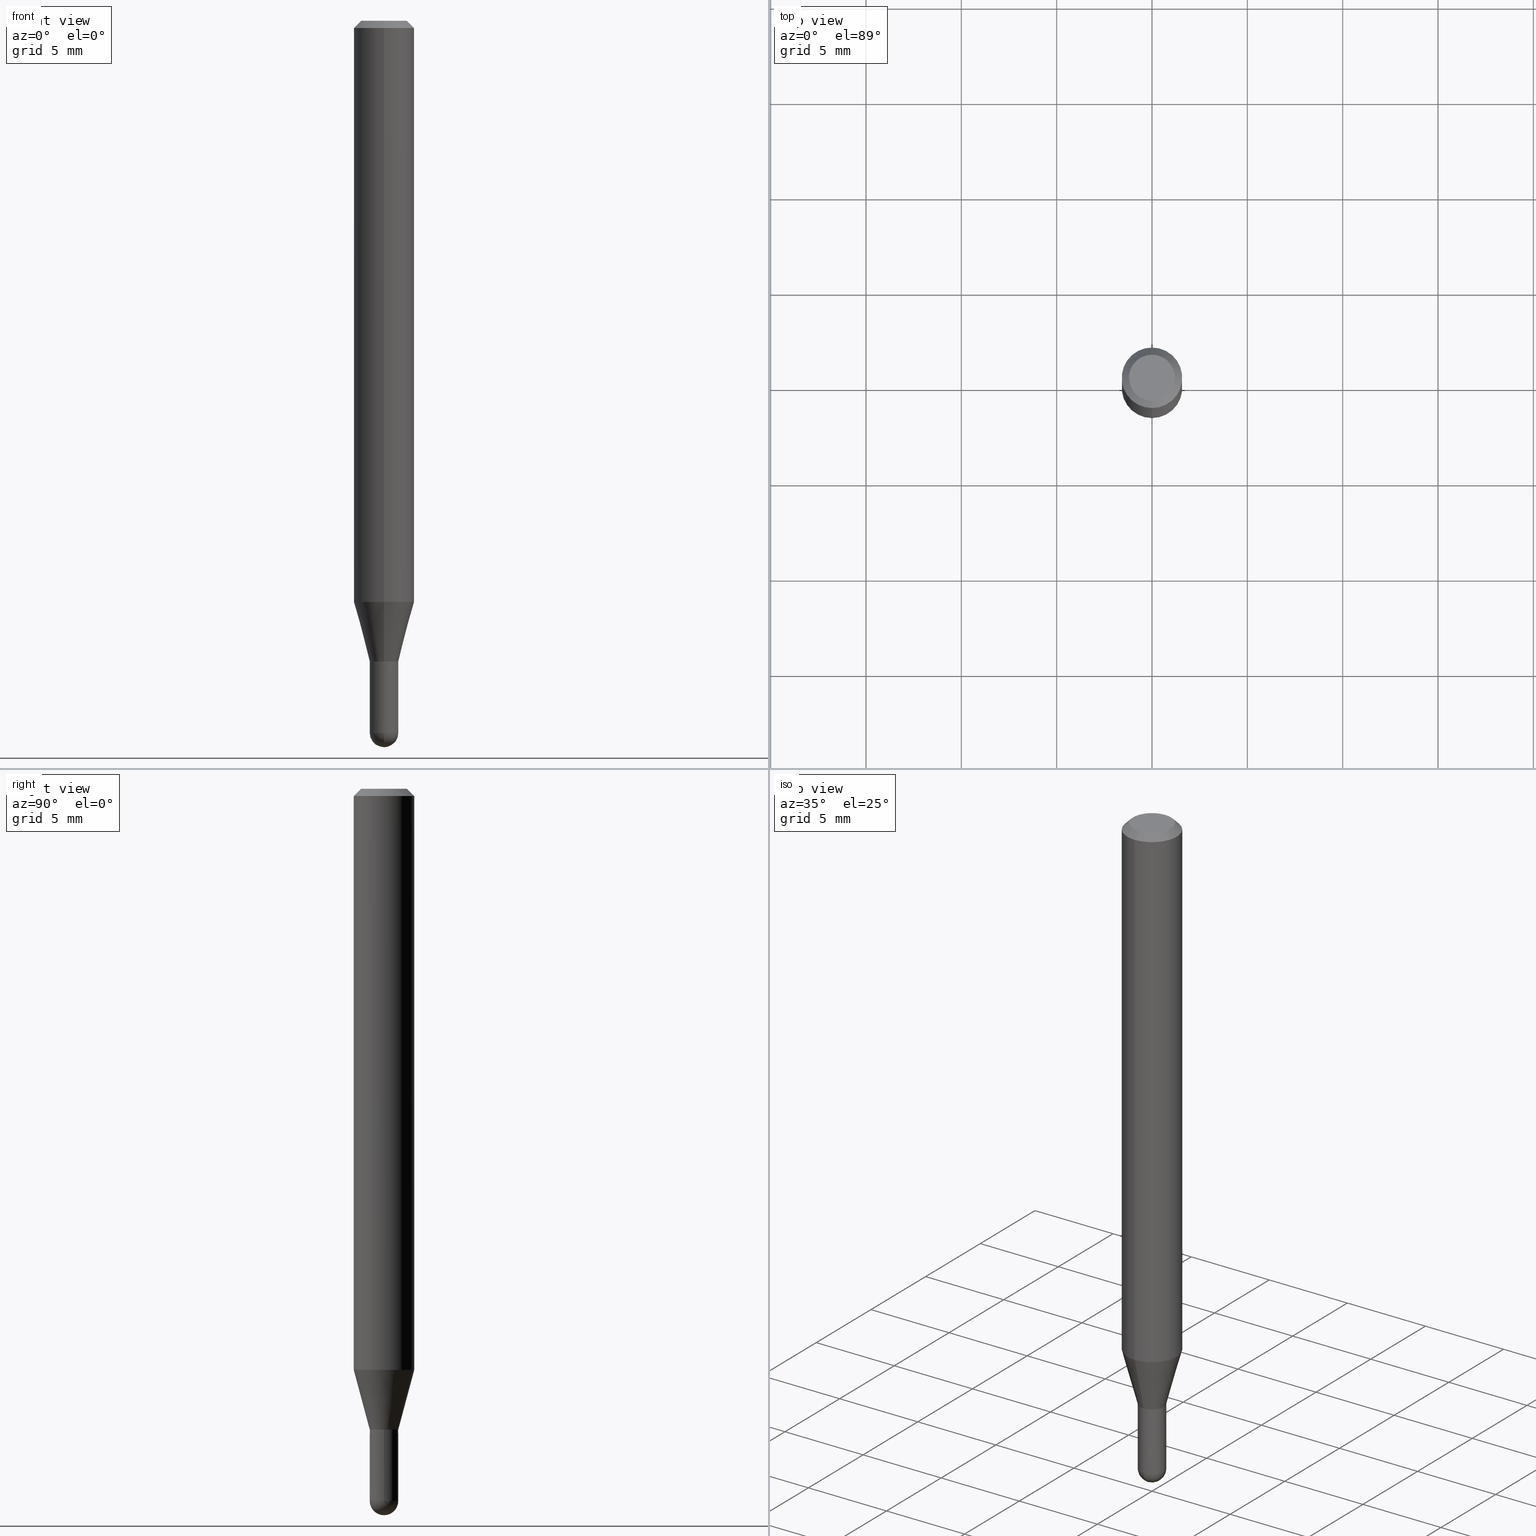
[diagram: canonical four-view strip — front | top / right | iso, engineering-drawing reading convention]
A machine part, canonical four-view strip (front | top / right | iso — engineering-drawing reading convention). The complete STEP part file that produces these views, byte-faithful:
ISO-10303-21;
HEADER;
FILE_DESCRIPTION (( 'STEP AP203' ),
    '1' );
FILE_NAME ('01482.STEP',
    '2024-03-07T21:31:13',
    ( '' ),
    ( '' ),
    'SwSTEP 2.0',
    'SolidWorks 2023',
    '' );
FILE_SCHEMA (( 'CONFIG_CONTROL_DESIGN' ));
ENDSEC;

DATA;
#1 = ORIENTED_EDGE ( 'NONE', *, *, #340, .F. ) ;
#2 = VECTOR ( 'NONE', #454, 39.37007874015748143 ) ;
#3 = AXIS2_PLACEMENT_3D ( 'NONE', #294, #452, #254 ) ;
#4 = VERTEX_POINT ( 'NONE', #277 ) ;
#5 = PERSON_AND_ORGANIZATION ( #240, #333 ) ;
#6 = CARTESIAN_POINT ( 'NONE',  ( -4.364351673553912750E-16, -0.06250000000000005551, -0.01499999999999979128 ) ) ;
#7 = EDGE_LOOP ( 'NONE', ( #408, #59, #193, #505 ) ) ;
#8 = EDGE_CURVE ( 'NONE', #418, #4, #76, .T. ) ;
#9 = CC_DESIGN_APPROVAL ( #30, ( #251 ) ) ;
#10 = EDGE_CURVE ( 'NONE', #413, #96, #382, .T. ) ;
#11 = APPROVAL_PERSON_ORGANIZATION ( #209, #216, #453 ) ;
#12 = ORIENTED_EDGE ( 'NONE', *, *, #352, .F. ) ;
#13 = ORIENTED_EDGE ( 'NONE', *, *, #473, .T. ) ;
#14 = CARTESIAN_POINT ( 'NONE',  ( 3.316907271900976096E-16, 0.04749999999999999362, -1.702749386738960268E-16 ) ) ;
#15 = DIRECTION ( 'NONE',  ( -2.445485998006059761E-29, 3.491456719177085880E-15, 1.000000000000000000 ) ) ;
#16 = AXIS2_PLACEMENT_3D ( 'NONE', #156, #41, #490 ) ;
#17 = CARTESIAN_POINT ( 'NONE',  ( 0.02950000000000000192, -5.082723959020908406E-15, -1.470500000000000140 ) ) ;
#18 = DIRECTION ( 'NONE',  ( -2.445485998006059761E-29, 3.491456719177085880E-15, 1.000000000000000000 ) ) ;
#19 = LINE ( 'NONE', #101, #107 ) ;
#20 =( CONVERSION_BASED_UNIT ( 'INCH', #374 ) LENGTH_UNIT ( ) NAMED_UNIT ( #339 ) );
#21 = DIRECTION ( 'NONE',  ( -6.982962677686265922E-15, -1.000000000000000000, 0.000000000000000000 ) ) ;
#22 = PERSON_AND_ORGANIZATION ( #240, #333 ) ;
#23 = ORIENTED_EDGE ( 'NONE', *, *, #447, .F. ) ;
#24 = CYLINDRICAL_SURFACE ( 'NONE', #185, 0.02950000000000000192 ) ;
#25 = LINE ( 'NONE', #91, #141 ) ;
#26 = DIRECTION ( 'NONE',  ( 1.000000000000000000, -6.982962677686250144E-15, 0.000000000000000000 ) ) ;
#27 = VERTEX_POINT ( 'NONE', #236 ) ;
#28 = DIRECTION ( 'NONE',  ( -2.445485998006059761E-29, 3.491456719177085880E-15, 1.000000000000000000 ) ) ;
#29 = AXIS2_PLACEMENT_3D ( 'NONE', #504, #431, #68 ) ;
#30 = APPROVAL ( #401, 'UNSPECIFIED' ) ;
#31 = DIRECTION ( 'NONE',  ( -2.445485998006059761E-29, 3.491456719177085486E-15, 1.000000000000000000 ) ) ;
#32 = EDGE_LOOP ( 'NONE', ( #194, #495, #363, #23 ) ) ;
#33 = ADVANCED_FACE ( 'NONE', ( #186 ), #62, .T. ) ;
#34 = CIRCLE ( 'NONE', #232, 0.02950000000000000192 ) ;
#35 = CONICAL_SURFACE ( 'NONE', #87, 0.06250000000000000000, 0.7853981633974483900 ) ;
#36 = FACE_OUTER_BOUND ( 'NONE', #81, .T. ) ;
#37 = CARTESIAN_POINT ( 'NONE',  ( -2.059973989917138785E-16, -0.02950000000000481751, -1.323000000000000176 ) ) ;
#38 = CC_DESIGN_PERSON_AND_ORGANIZATION_ASSIGNMENT ( #407, #492, ( #234 ) ) ;
#39 = ORIENTED_EDGE ( 'NONE', *, *, #89, .F. ) ;
#40 = CARTESIAN_POINT ( 'NONE',  ( 3.593539138942164173E-29, -5.137836016826330348E-15, -1.470500000000000140 ) ) ;
#41 = DIRECTION ( 'NONE',  ( 1.000000000000000000, -7.105427357601001070E-15, 4.926315508542082329E-29 ) ) ;
#42 = DIRECTION ( 'NONE',  ( -1.807323732225379049E-15, -0.2588190451025252359, 0.9659258262890670910 ) ) ;
#43 = VECTOR ( 'NONE', #465, 39.37007874015748143 ) ;
#44 = PRODUCT ( '01482', '01482', '', ( #151 ) ) ;
#45 = APPROVAL_ROLE ( '' ) ;
#46 = DIRECTION ( 'NONE',  ( -2.445485998006059761E-29, 3.491456719177085880E-15, 1.000000000000000000 ) ) ;
#47 = CALENDAR_DATE ( 2024, 7, 3 ) ;
#48 = VERTEX_POINT ( 'NONE', #37 ) ;
#49 = CONICAL_SURFACE ( 'NONE', #404, 0.06250000000000000000, 0.7853981633974483900 ) ;
#50 = CARTESIAN_POINT ( 'NONE',  ( 3.235355230582935570E-29, -4.619229811289481459E-15, -1.323000000000000176 ) ) ;
#51 = ORIENTED_EDGE ( 'NONE', *, *, #340, .T. ) ;
#52 = DIRECTION ( 'NONE',  ( -2.445485998006059761E-29, 3.491456719177085880E-15, 1.000000000000000000 ) ) ;
#53 = VERTEX_POINT ( 'NONE', #6 ) ;
#54 = CARTESIAN_POINT ( 'NONE',  ( 4.440892098500917054E-16, 0.06249999999999578115, -1.199842323350231998 ) ) ;
#55 = APPROVAL ( #211, 'UNSPECIFIED' ) ;
#56 = AXIS2_PLACEMENT_3D ( 'NONE', #165, #197, #367 ) ;
#57 = CYLINDRICAL_SURFACE ( 'NONE', #191, 0.02950000000000006437 ) ;
#58 = APPLICATION_PROTOCOL_DEFINITION ( 'international standard', 'config_control_design', 1994, #500 ) ;
#59 = ORIENTED_EDGE ( 'NONE', *, *, #10, .T. ) ;
#60 = EDGE_CURVE ( 'NONE', #474, #318, #155, .T. ) ;
#61 = CYLINDRICAL_SURFACE ( 'NONE', #371, 0.06250000000000000000 ) ;
#62 = CONICAL_SURFACE ( 'NONE', #422, 0.02899999999999999800, 0.7853981633974739252 ) ;
#63 = CIRCLE ( 'NONE', #278, 0.04749999999999999362 ) ;
#64 = VECTOR ( 'NONE', #217, 39.37007874015748143 ) ;
#65 = CARTESIAN_POINT ( 'NONE',  ( 4.440892098500920998E-16, 0.06249999999999995143, -0.01500000000000022669 ) ) ;
#66 = CARTESIAN_POINT ( 'NONE',  ( 3.235377975362016805E-29, -4.619197239471284421E-15, -1.323000000000000176 ) ) ;
#67 = VERTEX_POINT ( 'NONE', #144 ) ;
#68 = DIRECTION ( 'NONE',  ( 1.000000000000000000, -6.982962677686265922E-15, 4.876176775795935793E-29 ) ) ;
#69 = PRODUCT_DEFINITION ( 'UNKNOWN', '', #234, #300 ) ;
#70 = CARTESIAN_POINT ( 'NONE',  ( 2.167064733449136594E-46, -3.093950540163322949E-32, -8.861489025968927534E-18 ) ) ;
#71 = DIRECTION ( 'NONE',  ( -6.982962677686265922E-15, -1.000000000000000000, 0.000000000000000000 ) ) ;
#72 = CIRCLE ( 'NONE', #353, 0.02950000000000000192 ) ;
#73 = DIRECTION ( 'NONE',  ( -6.982962677686265922E-15, -1.000000000000000000, 3.483106191921935554E-15 ) ) ;
#74 = CIRCLE ( 'NONE', #16, 0.02950000000000016498 ) ;
#75 = CARTESIAN_POINT ( 'NONE',  ( -2.059973989917138785E-16, -0.02950000000000481751, -1.323000000000000176 ) ) ;
#76 = CIRCLE ( 'NONE', #476, 0.02950000000000000192 ) ;
#77 = CIRCLE ( 'NONE', #459, 0.02949999999999999845 ) ;
#78 = DIRECTION ( 'NONE',  ( -6.982962677686265133E-15, -1.000000000000000000, 3.491456719177085880E-15 ) ) ;
#79 = DATE_AND_TIME ( #127, #126 ) ;
#80 = CARTESIAN_POINT ( 'NONE',  ( 0.000000000000000000, 0.000000000000000000, 0.000000000000000000 ) ) ;
#81 = EDGE_LOOP ( 'NONE', ( #159, #214 ) ) ;
#82 = ADVANCED_FACE ( 'NONE', ( #309 ), #162, .T. ) ;
#83 = COORDINATED_UNIVERSAL_TIME_OFFSET ( 5, 0, .BEHIND. ) ;
#84 = DIRECTION ( 'NONE',  ( -2.445485998006059761E-29, 3.491456719177085880E-15, 1.000000000000000000 ) ) ;
#85 = DATE_AND_TIME ( #184, #405 ) ;
#86 = ORIENTED_EDGE ( 'NONE', *, *, #364, .T. ) ;
#87 = AXIS2_PLACEMENT_3D ( 'NONE', #88, #325, #478 ) ;
#88 = CARTESIAN_POINT ( 'NONE',  ( 3.668228997009091848E-31, -5.237185078765632149E-17, -0.01500000000000000812 ) ) ;
#89 = EDGE_CURVE ( 'NONE', #467, #136, #223, .T. ) ;
#90 = DATE_AND_TIME ( #290, #440 ) ;
#91 = CARTESIAN_POINT ( 'NONE',  ( 4.440892098500625669E-16, 0.06250000000000000000, -2.182160449485678675E-16 ) ) ;
#92 = DIRECTION ( 'NONE',  ( 1.000000000000000000, -6.982962677686250933E-15, 0.000000000000000000 ) ) ;
#93 = ORIENTED_EDGE ( 'NONE', *, *, #485, .T. ) ;
#94 = DIRECTION ( 'NONE',  ( 1.000000000000000000, -6.982962677686265922E-15, 4.876176775795935793E-29 ) ) ;
#95 = FACE_OUTER_BOUND ( 'NONE', #445, .T. ) ;
#96 = VERTEX_POINT ( 'NONE', #125 ) ;
#97 = AXIS2_PLACEMENT_3D ( 'NONE', #221, #28, #103 ) ;
#98 = CARTESIAN_POINT ( 'NONE',  ( 2.059973989917772093E-16, 0.02949999999999538061, -1.323000000000000176 ) ) ;
#99 = DIRECTION ( 'NONE',  ( -6.982962677686265922E-15, -1.000000000000000000, 0.000000000000000000 ) ) ;
#100 = ORIENTED_EDGE ( 'NONE', *, *, #373, .F. ) ;
#101 = CARTESIAN_POINT ( 'NONE',  ( -4.287811248607203282E-16, -0.06250000000000005551, -0.01499999999999979128 ) ) ;
#102 = CARTESIAN_POINT ( 'NONE',  ( 2.078337502098613392E-16, 0.02899999999999538017, -1.323000000000000176 ) ) ;
#103 = DIRECTION ( 'NONE',  ( -6.982962677686265922E-15, -1.000000000000000000, 3.483106191921935554E-15 ) ) ;
#104 = DIRECTION ( 'NONE',  ( -6.982962677686266711E-15, -1.000000000000000000, 3.491456719177085880E-15 ) ) ;
#105 = AXIS2_PLACEMENT_3D ( 'NONE', #40, #256, #231 ) ;
#106 = DIRECTION ( 'NONE',  ( -2.445468806185136597E-29, 3.491481338843145583E-15, 1.000000000000000000 ) ) ;
#107 = VECTOR ( 'NONE', #468, 39.37007874015748143 ) ;
#108 = ADVANCED_FACE ( 'NONE', ( #203 ), #442, .F. ) ;
#109 = ORIENTED_EDGE ( 'NONE', *, *, #10, .F. ) ;
#110 = CARTESIAN_POINT ( 'NONE',  ( 2.934197601568051168E-29, -4.189197541814212806E-15, -1.199842323350231776 ) ) ;
#111 = ORIENTED_EDGE ( 'NONE', *, *, #364, .F. ) ;
#112 = ORIENTED_EDGE ( 'NONE', *, *, #190, .T. ) ;
#113 = CARTESIAN_POINT ( 'NONE',  ( 2.096101070492299629E-16, 0.02950000000000006437, -1.029979732157242598E-16 ) ) ;
#114 = EDGE_LOOP ( 'NONE', ( #389, #181, #86, #390 ) ) ;
#115 = ORIENTED_EDGE ( 'NONE', *, *, #403, .T. ) ;
#116 = ADVANCED_FACE ( 'NONE', ( #129 ), #398, .T. ) ;
#117 = EDGE_LOOP ( 'NONE', ( #112, #271 ) ) ;
#118 = EDGE_LOOP ( 'NONE', ( #471, #282, #122, #51, #315 ) ) ;
#119 = AXIS2_PLACEMENT_3D ( 'NONE', #154, #31, #511 ) ;
#120 = APPLICATION_CONTEXT ( 'configuration controlled 3d designs of mechanical parts and assemblies' ) ;
#121 = EDGE_CURVE ( 'NONE', #4, #402, #397, .T. ) ;
#122 = ORIENTED_EDGE ( 'NONE', *, *, #149, .T. ) ;
#123 = CC_DESIGN_PERSON_AND_ORGANIZATION_ASSIGNMENT ( #479, #253, ( #234 ) ) ;
#124 = AXIS2_PLACEMENT_3D ( 'NONE', #14, #326, #443 ) ;
#125 = CARTESIAN_POINT ( 'NONE',  ( -2.059973989917094905E-16, -0.02950000000000521996, -1.470500000000000140 ) ) ;
#126 = LOCAL_TIME ( 16, 31, 13.00000000000000000, #331 ) ;
#127 = CALENDAR_DATE ( 2024, 7, 3 ) ;
#128 = PERSON_AND_ORGANIZATION ( #240, #333 ) ;
#129 = FACE_OUTER_BOUND ( 'NONE', #342, .T. ) ;
#130 = ORIENTED_EDGE ( 'NONE', *, *, #475, .F. ) ;
#131 = DIRECTION ( 'NONE',  ( -6.982962677686265922E-15, -1.000000000000000000, 4.370956789862821150E-15 ) ) ;
#132 = APPROVAL_ROLE ( '' ) ;
#133 = CARTESIAN_POINT ( 'NONE',  ( 3.840629472727447874E-16, 0.04749999999999999362, -1.747056831868805136E-16 ) ) ;
#134 = CARTESIAN_POINT ( 'NONE',  ( 3.596061879495243621E-29, -5.134223308768845522E-15, -1.470500000000000140 ) ) ;
#135 = ORIENTED_EDGE ( 'NONE', *, *, #506, .F. ) ;
#136 = VERTEX_POINT ( 'NONE', #54 ) ;
#137 = DIRECTION ( 'NONE',  ( -2.445485998006059761E-29, 3.491456719177085880E-15, 1.000000000000000000 ) ) ;
#138 = FACE_OUTER_BOUND ( 'NONE', #381, .T. ) ;
#139 = ORIENTED_EDGE ( 'NONE', *, *, #461, .T. ) ;
#140 = DIRECTION ( 'NONE',  ( 0.000000000000000000, 0.000000000000000000, 1.000000000000000000 ) ) ;
#141 = VECTOR ( 'NONE', #493, 39.37007874015748143 ) ;
#142 = CARTESIAN_POINT ( 'NONE',  ( 3.235377975362016805E-29, -4.619197239471284421E-15, -1.323000000000000176 ) ) ;
#143 = DIRECTION ( 'NONE',  ( -2.445485998006059761E-29, 3.491456719177085880E-15, 1.000000000000000000 ) ) ;
#144 = CARTESIAN_POINT ( 'NONE',  ( -3.773273898774340269E-16, -0.04749999999999999362, 1.569827051349426154E-16 ) ) ;
#145 = ADVANCED_FACE ( 'NONE', ( #502 ), #497, .T. ) ;
#146 = DIRECTION ( 'NONE',  ( -2.445468806185136597E-29, 3.491481338843145583E-15, 1.000000000000000000 ) ) ;
#147 = DIRECTION ( 'NONE',  ( 2.445485998006059761E-29, -3.491456719177085880E-15, -1.000000000000000000 ) ) ;
#148 = DIRECTION ( 'NONE',  ( -2.445468806185136597E-29, 3.491481338843145583E-15, 1.000000000000000000 ) ) ;
#149 = EDGE_CURVE ( 'NONE', #96, #512, #34, .T. ) ;
#150 = AXIS2_PLACEMENT_3D ( 'NONE', #365, #52, #99 ) ;
#151 = MECHANICAL_CONTEXT ( 'NONE', #120, 'mechanical' ) ;
#152 = ORIENTED_EDGE ( 'NONE', *, *, #149, .F. ) ;
#153 = EDGE_CURVE ( 'NONE', #467, #48, #302, .T. ) ;
#154 = CARTESIAN_POINT ( 'NONE',  ( 3.235377975362016805E-29, -4.619197239471284421E-15, -1.323000000000000176 ) ) ;
#155 = LINE ( 'NONE', #433, #160 ) ;
#156 = CARTESIAN_POINT ( 'NONE',  ( 3.593539138942164173E-29, -5.137836016826330348E-15, -1.470500000000000140 ) ) ;
#157 = CC_DESIGN_DATE_AND_TIME_ASSIGNMENT ( #85, #346, ( #69 ) ) ;
#158 = ORIENTED_EDGE ( 'NONE', *, *, #403, .F. ) ;
#159 = ORIENTED_EDGE ( 'NONE', *, *, #262, .F. ) ;
#160 = VECTOR ( 'NONE', #322, 39.37007874015748143 ) ;
#161 = EDGE_CURVE ( 'NONE', #4, #96, #72, .T. ) ;
#162 = SPHERICAL_SURFACE ( 'NONE', #105, 0.02950000000000016498 ) ;
#163 = ADVANCED_FACE ( 'NONE', ( #138 ), #285, .T. ) ;
#164 = AXIS2_PLACEMENT_3D ( 'NONE', #205, #316, #425 ) ;
#165 = CARTESIAN_POINT ( 'NONE',  ( 3.234155232363014504E-29, -4.617451511111696555E-15, -1.322500000000000231 ) ) ;
#166 = EDGE_LOOP ( 'NONE', ( #455, #366, #100, #111 ) ) ;
#167 = SECURITY_CLASSIFICATION_LEVEL ( 'unclassified' ) ;
#168 = DIRECTION ( 'NONE',  ( -2.445485998006059761E-29, 3.491456719177085880E-15, 1.000000000000000000 ) ) ;
#169 = EDGE_CURVE ( 'NONE', #317, #430, #298, .T. ) ;
#170 = ORIENTED_EDGE ( 'NONE', *, *, #153, .F. ) ;
#171 = SHAPE_DEFINITION_REPRESENTATION ( #245, #483 ) ;
#172 = DIRECTION ( 'NONE',  ( -6.982962677686265922E-15, -1.000000000000000000, 0.000000000000000000 ) ) ;
#173 = AXIS2_PLACEMENT_3D ( 'NONE', #142, #15, #368 ) ;
#174 = ORIENTED_EDGE ( 'NONE', *, *, #190, .F. ) ;
#175 = CIRCLE ( 'NONE', #347, 0.02899999999999999800 ) ;
#176 = CYLINDRICAL_SURFACE ( 'NONE', #432, 0.06250000000000000000 ) ;
#177 = CARTESIAN_POINT ( 'NONE',  ( 0.000000000000000000, 0.000000000000000000, 0.000000000000000000 ) ) ;
#178 = LINE ( 'NONE', #207, #64 ) ;
#179 = DIRECTION ( 'NONE',  ( -6.982962677686265133E-15, -1.000000000000000000, 0.000000000000000000 ) ) ;
#180 = COORDINATED_UNIVERSAL_TIME_OFFSET ( 5, 0, .BEHIND. ) ;
#181 = ORIENTED_EDGE ( 'NONE', *, *, #287, .T. ) ;
#182 = DIRECTION ( 'NONE',  ( -6.982962677686265922E-15, -1.000000000000000000, 0.000000000000000000 ) ) ;
#183 = DIRECTION ( 'NONE',  ( -2.445468806185136877E-29, 3.491481338843145188E-15, 1.000000000000000000 ) ) ;
#184 = CALENDAR_DATE ( 2024, 7, 3 ) ;
#185 = AXIS2_PLACEMENT_3D ( 'NONE', #508, #146, #94 ) ;
#186 = FACE_OUTER_BOUND ( 'NONE', #276, .T. ) ;
#187 = ORIENTED_EDGE ( 'NONE', *, *, #304, .F. ) ;
#188 = PLANE ( 'NONE',  #293 ) ;
#189 = ORIENTED_EDGE ( 'NONE', *, *, #242, .T. ) ;
#190 = EDGE_CURVE ( 'NONE', #395, #402, #451, .T. ) ;
#191 = AXIS2_PLACEMENT_3D ( 'NONE', #215, #341, #460 ) ;
#192 = PLANE ( 'NONE',  #119 ) ;
#193 = ORIENTED_EDGE ( 'NONE', *, *, #161, .F. ) ;
#194 = ORIENTED_EDGE ( 'NONE', *, *, #244, .T. ) ;
#195 = CLOSED_SHELL ( 'NONE', ( #400, #82, #437, #145, #441 ) ) ;
#196 = ORIENTED_EDGE ( 'NONE', *, *, #321, .T. ) ;
#197 = DIRECTION ( 'NONE',  ( -2.445485998006059761E-29, 3.491456719177085880E-15, 1.000000000000000000 ) ) ;
#198 = CARTESIAN_POINT ( 'NONE',  ( -0.02950000000000000192, 2.096101070492295684E-16, -1.451085851625197342E-30 ) ) ;
#199 = ADVANCED_FACE ( 'NONE', ( #406 ), #176, .T. ) ;
#200 = DATE_AND_TIME ( #47, #305 ) ;
#201 = AXIS2_PLACEMENT_3D ( 'NONE', #313, #427, #71 ) ;
#202 = CIRCLE ( 'NONE', #150, 0.02950000000000019967 ) ;
#203 = FACE_OUTER_BOUND ( 'NONE', #289, .T. ) ;
#204 = PERSON_AND_ORGANIZATION_ROLE ( 'classification_officer' ) ;
#205 = CARTESIAN_POINT ( 'NONE',  ( 3.596061879495243621E-29, -5.134223308768845522E-15, -1.470500000000000140 ) ) ;
#206 = CARTESIAN_POINT ( 'NONE',  ( -2.059973989917126460E-16, -0.02950000000000463710, -1.322500000000000231 ) ) ;
#207 = CARTESIAN_POINT ( 'NONE',  ( -2.059973989917452604E-16, -0.02950000000000006437, 1.029979732157242598E-16 ) ) ;
#208 = DIRECTION ( 'NONE',  ( -2.445468806185136597E-29, 3.491481338843145583E-15, 1.000000000000000000 ) ) ;
#209 = PERSON_AND_ORGANIZATION ( #240, #333 ) ;
#210 = DIRECTION ( 'NONE',  ( -2.445468806185136597E-29, 3.491481338843145583E-15, 1.000000000000000000 ) ) ;
#211 = APPROVAL_STATUS ( 'not_yet_approved' ) ;
#212 = CIRCLE ( 'NONE', #399, 0.06250000000000000000 ) ;
#213 = ADVANCED_FACE ( 'NONE', ( #494 ), #61, .T. ) ;
#214 = ORIENTED_EDGE ( 'NONE', *, *, #242, .F. ) ;
#215 = CARTESIAN_POINT ( 'NONE',  ( 0.000000000000000000, 0.000000000000000000, 0.000000000000000000 ) ) ;
#216 = APPROVAL ( #295, 'UNSPECIFIED' ) ;
#217 = DIRECTION ( 'NONE',  ( -2.445485998006060041E-29, 3.491456719177085486E-15, 1.000000000000000000 ) ) ;
#218 = CARTESIAN_POINT ( 'NONE',  ( 3.596061879495243621E-29, -5.134223308768845522E-15, -1.470500000000000140 ) ) ;
#219 = AXIS2_PLACEMENT_3D ( 'NONE', #50, #301, #92 ) ;
#220 = CIRCLE ( 'NONE', #264, 0.06250000000000000000 ) ;
#221 = CARTESIAN_POINT ( 'NONE',  ( 3.668228997009091848E-31, -5.237185078765632149E-17, -0.01500000000000000812 ) ) ;
#222 = DIRECTION ( 'NONE',  ( -2.445485998006059761E-29, 3.491456719177085880E-15, 1.000000000000000000 ) ) ;
#223 = LINE ( 'NONE', #449, #391 ) ;
#224 = DIRECTION ( 'NONE',  ( 1.000000000000000000, -6.982962677686250933E-15, 0.000000000000000000 ) ) ;
#225 = CC_DESIGN_DATE_AND_TIME_ASSIGNMENT ( #200, #484, ( #251 ) ) ;
#226 = DIRECTION ( 'NONE',  ( -2.445485998006059761E-29, 3.491456719177085880E-15, 1.000000000000000000 ) ) ;
#227 = ORIENTED_EDGE ( 'NONE', *, *, #352, .T. ) ;
#228 = CARTESIAN_POINT ( 'NONE',  ( 3.668228997009091848E-31, -5.237185078765632149E-17, -0.01500000000000000812 ) ) ;
#229 = FACE_OUTER_BOUND ( 'NONE', #463, .T. ) ;
#230 = DIRECTION ( 'NONE',  ( -6.982962677686265133E-15, -1.000000000000000000, 0.000000000000000000 ) ) ;
#231 = DIRECTION ( 'NONE',  ( -6.982962677686265922E-15, -1.000000000000000000, 0.000000000000000000 ) ) ;
#232 = AXIS2_PLACEMENT_3D ( 'NONE', #134, #208, #26 ) ;
#233 = CIRCLE ( 'NONE', #241, 0.06250000000000000000 ) ;
#234 = PRODUCT_DEFINITION_FORMATION_WITH_SPECIFIED_SOURCE ( 'ANY', '', #44, .NOT_KNOWN. ) ;
#235 = VERTEX_POINT ( 'NONE', #206 ) ;
#236 = CARTESIAN_POINT ( 'NONE',  ( -2.025059176528693183E-16, -0.02900000000000461584, -1.323000000000000176 ) ) ;
#237 = LINE ( 'NONE', #75, #392 ) ;
#238 = CARTESIAN_POINT ( 'NONE',  ( 3.235377975362016805E-29, -4.619197239471284421E-15, -1.323000000000000176 ) ) ;
#239 = ADVANCED_FACE ( 'NONE', ( #249 ), #482, .T. ) ;
#240 = PERSON ( 'UNSPECIFIED', 'UNSPECIFIED', 'UNSPECIFIED', ('UNSPECIFIED'), ('UNSPECIFIED'), ('UNSPECIFIED') ) ;
#241 = AXIS2_PLACEMENT_3D ( 'NONE', #228, #396, #73 ) ;
#242 = EDGE_CURVE ( 'NONE', #317, #27, #175, .T. ) ;
#243 = DIRECTION ( 'NONE',  ( -6.982962677686265922E-15, -1.000000000000000000, 0.000000000000000000 ) ) ;
#244 = EDGE_CURVE ( 'NONE', #48, #467, #202, .T. ) ;
#245 = PRODUCT_DEFINITION_SHAPE ( 'NONE', 'NONE',  #69 ) ;
#246 = ADVANCED_FACE ( 'NONE', ( #95 ), #57, .F. ) ;
#247 = PERSON_AND_ORGANIZATION ( #240, #333 ) ;
#248 = AXIS2_PLACEMENT_3D ( 'NONE', #80, #486, #78 ) ;
#249 = FACE_OUTER_BOUND ( 'NONE', #32, .T. ) ;
#250 = APPROVAL_DATE_TIME ( #90, #216 ) ;
#251 = SECURITY_CLASSIFICATION ( '', '', #167 ) ;
#252 = VERTEX_POINT ( 'NONE', #267 ) ;
#253 = PERSON_AND_ORGANIZATION_ROLE ( 'design_supplier' ) ;
#254 = DIRECTION ( 'NONE',  ( -6.982962677686265133E-15, -1.000000000000000000, 0.000000000000000000 ) ) ;
#255 = DATE_AND_TIME ( #335, #477 ) ;
#256 = DIRECTION ( 'NONE',  ( 1.000000000000000000, -6.982962677686265922E-15, 4.883557194083112340E-29 ) ) ;
#257 = EDGE_CURVE ( 'NONE', #252, #136, #220, .T. ) ;
#258 = ORIENTED_EDGE ( 'NONE', *, *, #297, .T. ) ;
#259 = DIRECTION ( 'NONE',  ( -2.445485998006060041E-29, 3.491456719177085486E-15, 1.000000000000000000 ) ) ;
#260 = DIRECTION ( 'NONE',  ( -6.982962677686266711E-15, -1.000000000000000000, 3.491456719177085880E-15 ) ) ;
#261 = CARTESIAN_POINT ( 'NONE',  ( 0.000000000000000000, 0.000000000000000000, 0.000000000000000000 ) ) ;
#262 = EDGE_CURVE ( 'NONE', #27, #317, #416, .T. ) ;
#263 = ORIENTED_EDGE ( 'NONE', *, *, #287, .F. ) ;
#264 = AXIS2_PLACEMENT_3D ( 'NONE', #419, #168, #131 ) ;
#265 = APPROVAL_PERSON_ORGANIZATION ( #128, #30, #45 ) ;
#266 = DIRECTION ( 'NONE',  ( -1.000000000000000000, 6.982962677686265922E-15, -4.876176775795935793E-29 ) ) ;
#267 = CARTESIAN_POINT ( 'NONE',  ( -4.364351673553624323E-16, -0.06250000000000421885, -1.199842323350231554 ) ) ;
#268 = PERSON_AND_ORGANIZATION_ROLE ( 'creator' ) ;
#269 = CARTESIAN_POINT ( 'NONE',  ( 3.664419098448086283E-29, -5.242641070350946204E-15, -1.500000000000000222 ) ) ;
#270 = CARTESIAN_POINT ( 'NONE',  ( 3.668228997009091848E-31, -5.237185078765632149E-17, -0.01500000000000000812 ) ) ;
#271 = ORIENTED_EDGE ( 'NONE', *, *, #429, .T. ) ;
#272 = CARTESIAN_POINT ( 'NONE',  ( 0.02950000000000000192, -2.059973989917448660E-16, 1.438472148859801150E-30 ) ) ;
#273 = ORIENTED_EDGE ( 'NONE', *, *, #169, .T. ) ;
#274 = ORIENTED_EDGE ( 'NONE', *, *, #153, .T. ) ;
#275 = DIRECTION ( 'NONE',  ( -4.937700262164674260E-15, -0.7071067811865632269, 0.7071067811865319186 ) ) ;
#276 = EDGE_LOOP ( 'NONE', ( #434, #189, #385, #12 ) ) ;
#277 = CARTESIAN_POINT ( 'NONE',  ( -0.02950000000000000192, -4.667116452979933749E-15, -1.470500000000000140 ) ) ;
#278 = AXIS2_PLACEMENT_3D ( 'NONE', #70, #222, #104 ) ;
#279 = ORIENTED_EDGE ( 'NONE', *, *, #121, .T. ) ;
#280 = EDGE_CURVE ( 'NONE', #512, #418, #499, .T. ) ;
#281 = DIRECTION ( 'NONE',  ( -2.445468806185136877E-29, 3.491481338843145188E-15, 1.000000000000000000 ) ) ;
#282 = ORIENTED_EDGE ( 'NONE', *, *, #161, .T. ) ;
#283 = CC_DESIGN_PERSON_AND_ORGANIZATION_ASSIGNMENT ( #5, #320, ( #44 ) ) ;
#284 = FACE_OUTER_BOUND ( 'NONE', #488, .T. ) ;
#285 = CONICAL_SURFACE ( 'NONE', #360, 0.02899999999999999800, 0.7853981633974739252 ) ;
#286 = VECTOR ( 'NONE', #275, 39.37007874015748143 ) ;
#287 = EDGE_CURVE ( 'NONE', #136, #252, #212, .T. ) ;
#288 = FACE_OUTER_BOUND ( 'NONE', #118, .T. ) ;
#289 = EDGE_LOOP ( 'NONE', ( #170, #258, #227, #130 ) ) ;
#290 = CALENDAR_DATE ( 2024, 7, 3 ) ;
#291 = EDGE_LOOP ( 'NONE', ( #109, #13, #369, #152 ) ) ;
#292 = MANIFOLD_SOLID_BREP ( 'Body-Move/Copy2[2]', #323 ) ;
#293 = AXIS2_PLACEMENT_3D ( 'NONE', #98, #414, #266 ) ;
#294 = CARTESIAN_POINT ( 'NONE',  ( 3.235377975362016805E-29, -4.619197239471284421E-15, -1.323000000000000176 ) ) ;
#295 = APPROVAL_STATUS ( 'not_yet_approved' ) ;
#296 = ORIENTED_EDGE ( 'NONE', *, *, #321, .F. ) ;
#297 = EDGE_CURVE ( 'NONE', #467, #430, #350, .T. ) ;
#298 = LINE ( 'NONE', #372, #2 ) ;
#299 = DIRECTION ( 'NONE',  ( -2.445485998006059761E-29, 3.491456719177085880E-15, 1.000000000000000000 ) ) ;
#300 = DESIGN_CONTEXT ( 'detailed design', #500, 'design' ) ;
#301 = DIRECTION ( 'NONE',  ( -2.445468806185136597E-29, 3.491481338843145583E-15, 1.000000000000000000 ) ) ;
#302 = CIRCLE ( 'NONE', #173, 0.02950000000000019967 ) ;
#303 = APPROVAL_DATE_TIME ( #255, #55 ) ;
#304 = EDGE_CURVE ( 'NONE', #27, #235, #308, .T. ) ;
#305 = LOCAL_TIME ( 16, 31, 13.00000000000000000, #83 ) ;
#306 = DIRECTION ( 'NONE',  ( -2.445485998006059761E-29, 3.491456719177085880E-15, 1.000000000000000000 ) ) ;
#307 = CARTESIAN_POINT ( 'NONE',  ( 3.235377975362016805E-29, -4.619197239471284421E-15, -1.323000000000000176 ) ) ;
#308 = LINE ( 'NONE', #466, #286 ) ;
#309 = FACE_OUTER_BOUND ( 'NONE', #291, .T. ) ;
#310 = CARTESIAN_POINT ( 'NONE',  ( -0.02949999999999999845, -4.667116452979933749E-15, -1.323000000000000176 ) ) ;
#311 = MANIFOLD_SOLID_BREP ( 'Body-Move/Copy2[1]', #195 ) ;
#312 = DIRECTION ( 'NONE',  ( -6.982962677686265922E-15, -1.000000000000000000, 4.370956789862821150E-15 ) ) ;
#313 = CARTESIAN_POINT ( 'NONE',  ( 3.593539138942164173E-29, -5.137836016826330348E-15, -1.470500000000000140 ) ) ;
#314 = CC_DESIGN_SECURITY_CLASSIFICATION ( #251, ( #234 ) ) ;
#315 = ORIENTED_EDGE ( 'NONE', *, *, #429, .F. ) ;
#316 = DIRECTION ( 'NONE',  ( -2.445468806185136597E-29, 3.491481338843145583E-15, 1.000000000000000000 ) ) ;
#317 = VERTEX_POINT ( 'NONE', #102 ) ;
#318 = VERTEX_POINT ( 'NONE', #65 ) ;
#319 = CC_DESIGN_PERSON_AND_ORGANIZATION_ASSIGNMENT ( #462, #268, ( #69 ) ) ;
#320 = PERSON_AND_ORGANIZATION_ROLE ( 'design_owner' ) ;
#321 = EDGE_CURVE ( 'NONE', #67, #474, #63, .T. ) ;
#322 = DIRECTION ( 'NONE',  ( 4.937700262164548042E-15, 0.7071067811865451302, -0.7071067811865499042 ) ) ;
#323 = CLOSED_SHELL ( 'NONE', ( #108, #163, #328, #213, #239, #116, #199, #359, #355, #337, #33, #246 ) ) ;
#324 = CIRCLE ( 'NONE', #423, 0.02949999999999992212 ) ;
#325 = DIRECTION ( 'NONE',  ( 2.445485998006059761E-29, -3.491456719177085880E-15, -1.000000000000000000 ) ) ;
#326 = DIRECTION ( 'NONE',  ( 2.445485998006059761E-29, -3.491456719177085486E-15, -1.000000000000000000 ) ) ;
#327 = VECTOR ( 'NONE', #259, 39.37007874015748143 ) ;
#328 = ADVANCED_FACE ( 'NONE', ( #229 ), #49, .T. ) ;
#329 = LINE ( 'NONE', #349, #327 ) ;
#330 = ORIENTED_EDGE ( 'NONE', *, *, #8, .T. ) ;
#331 = COORDINATED_UNIVERSAL_TIME_OFFSET ( 5, 0, .BEHIND. ) ;
#332 = EDGE_LOOP ( 'NONE', ( #330, #279, #174, #1, #351 ) ) ;
#333 = ORGANIZATION ( 'UNSPECIFIED', 'UNSPECIFIED', '' ) ;
#334 = DIRECTION ( 'NONE',  ( 1.000000000000000000, -6.982962677686250144E-15, 0.000000000000000000 ) ) ;
#335 = CALENDAR_DATE ( 2024, 7, 3 ) ;
#336 = ORIENTED_EDGE ( 'NONE', *, *, #297, .F. ) ;
#337 = ADVANCED_FACE ( 'NONE', ( #36 ), #192, .F. ) ;
#338 = DIRECTION ( 'NONE',  ( -6.982962677686265922E-15, -1.000000000000000000, 3.491456719177085880E-15 ) ) ;
#339 = DIMENSIONAL_EXPONENTS ( 1.000000000000000000, 0.000000000000000000, 0.000000000000000000, 0.000000000000000000, 0.000000000000000000, 0.000000000000000000, 0.000000000000000000 ) ;
#340 = EDGE_CURVE ( 'NONE', #512, #395, #470, .T. ) ;
#341 = DIRECTION ( 'NONE',  ( -2.445485998006059761E-29, 3.491456719177085880E-15, 1.000000000000000000 ) ) ;
#342 = EDGE_LOOP ( 'NONE', ( #39, #274, #356, #263 ) ) ;
#343 = CARTESIAN_POINT ( 'NONE',  ( 0.02949999999999999845, -4.825227210281225980E-15, -1.323000000000000176 ) ) ;
#344 = CARTESIAN_POINT ( 'NONE',  ( 3.234155232363014504E-29, -4.617451511111696555E-15, -1.322500000000000231 ) ) ;
#345 = DIRECTION ( 'NONE',  ( -6.982962677686265133E-15, -1.000000000000000000, 0.000000000000000000 ) ) ;
#346 = DATE_TIME_ROLE ( 'creation_date' ) ;
#347 = AXIS2_PLACEMENT_3D ( 'NONE', #487, #84, #179 ) ;
#348 = CARTESIAN_POINT ( 'NONE',  ( 3.235355230582935570E-29, -4.619229811289481459E-15, -1.323000000000000176 ) ) ;
#349 = CARTESIAN_POINT ( 'NONE',  ( -4.364351673553916201E-16, -0.06250000000000000000, 2.182160449485678675E-16 ) ) ;
#350 = LINE ( 'NONE', #113, #43 ) ;
#351 = ORIENTED_EDGE ( 'NONE', *, *, #280, .T. ) ;
#352 = EDGE_CURVE ( 'NONE', #430, #235, #469, .T. ) ;
#353 = AXIS2_PLACEMENT_3D ( 'NONE', #218, #210, #334 ) ;
#354 = AXIS2_PLACEMENT_3D ( 'NONE', #307, #456, #21 ) ;
#355 = ADVANCED_FACE ( 'NONE', ( #284 ), #439, .F. ) ;
#356 = ORIENTED_EDGE ( 'NONE', *, *, #447, .T. ) ;
#357 = AXIS2_PLACEMENT_3D ( 'NONE', #370, #378, #260 ) ;
#358 =( GEOMETRIC_REPRESENTATION_CONTEXT ( 3 ) GLOBAL_UNCERTAINTY_ASSIGNED_CONTEXT ( ( #496 ) ) GLOBAL_UNIT_ASSIGNED_CONTEXT ( ( #20, #464, #421 ) ) REPRESENTATION_CONTEXT ( 'NONE', 'WORKASPACE' ) );
#359 = ADVANCED_FACE ( 'NONE', ( #448 ), #35, .T. ) ;
#360 = AXIS2_PLACEMENT_3D ( 'NONE', #491, #299, #345 ) ;
#361 = CIRCLE ( 'NONE', #357, 0.04749999999999999362 ) ;
#362 = APPROVAL_DATE_TIME ( #79, #30 ) ;
#363 = ORIENTED_EDGE ( 'NONE', *, *, #257, .F. ) ;
#364 = EDGE_CURVE ( 'NONE', #252, #53, #329, .T. ) ;
#365 = CARTESIAN_POINT ( 'NONE',  ( 3.235377975362016805E-29, -4.619197239471284421E-15, -1.323000000000000176 ) ) ;
#366 = ORIENTED_EDGE ( 'NONE', *, *, #503, .T. ) ;
#367 = DIRECTION ( 'NONE',  ( -6.982962677686265922E-15, -1.000000000000000000, 0.000000000000000000 ) ) ;
#368 = DIRECTION ( 'NONE',  ( -6.982962677686265922E-15, -1.000000000000000000, 0.000000000000000000 ) ) ;
#369 = ORIENTED_EDGE ( 'NONE', *, *, #280, .F. ) ;
#370 = CARTESIAN_POINT ( 'NONE',  ( 2.167064733449136594E-46, -3.093950540163322949E-32, -8.861489025968927534E-18 ) ) ;
#371 = AXIS2_PLACEMENT_3D ( 'NONE', #375, #137, #417 ) ;
#372 = CARTESIAN_POINT ( 'NONE',  ( 2.060573933704613583E-16, 0.02899999999999538017, -1.323000000000000176 ) ) ;
#373 = EDGE_CURVE ( 'NONE', #53, #318, #383, .T. ) ;
#374 = LENGTH_MEASURE_WITH_UNIT ( LENGTH_MEASURE( 0.02539999999999999897 ), #411 );
#375 = CARTESIAN_POINT ( 'NONE',  ( 0.000000000000000000, 0.000000000000000000, 0.000000000000000000 ) ) ;
#376 = ORIENTED_EDGE ( 'NONE', *, *, #60, .F. ) ;
#377 = FACE_OUTER_BOUND ( 'NONE', #332, .T. ) ;
#378 = DIRECTION ( 'NONE',  ( -2.445485998006059761E-29, 3.491456719177085880E-15, 1.000000000000000000 ) ) ;
#379 = CARTESIAN_POINT ( 'NONE',  ( 3.593539138942164173E-29, -5.137836016826330348E-15, -1.470500000000000140 ) ) ;
#380 = COORDINATED_UNIVERSAL_TIME_OFFSET ( 5, 0, .BEHIND. ) ;
#381 = EDGE_LOOP ( 'NONE', ( #450, #273, #135, #187 ) ) ;
#382 = CIRCLE ( 'NONE', #201, 0.02950000000000016498 ) ;
#383 = CIRCLE ( 'NONE', #97, 0.06250000000000000000 ) ;
#384 = APPROVAL_PERSON_ORGANIZATION ( #22, #55, #132 ) ;
#385 = ORIENTED_EDGE ( 'NONE', *, *, #304, .T. ) ;
#386 = DIRECTION ( 'NONE',  ( 6.982962677686265922E-15, 1.000000000000000000, -3.483106191921935554E-15 ) ) ;
#387 = FACE_OUTER_BOUND ( 'NONE', #117, .T. ) ;
#388 = APPLICATION_PROTOCOL_DEFINITION ( 'international standard', 'config_control_design', 1994, #120 ) ;
#389 = ORIENTED_EDGE ( 'NONE', *, *, #503, .F. ) ;
#390 = ORIENTED_EDGE ( 'NONE', *, *, #461, .F. ) ;
#391 = VECTOR ( 'NONE', #480, 39.37007874015748854 ) ;
#392 = VECTOR ( 'NONE', #42, 39.37007874015748854 ) ;
#393 = CARTESIAN_POINT ( 'NONE',  ( 3.268496584496776837E-16, 0.02949999999999558184, -1.323000000000000176 ) ) ;
#394 = CARTESIAN_POINT ( 'NONE',  ( 3.596061879495243621E-29, -5.134223308768845522E-15, -1.470500000000000140 ) ) ;
#395 = VERTEX_POINT ( 'NONE', #343 ) ;
#396 = DIRECTION ( 'NONE',  ( -2.445485998006059761E-29, 3.491456719177085880E-15, 1.000000000000000000 ) ) ;
#397 = LINE ( 'NONE', #198, #481 ) ;
#398 = CONICAL_SURFACE ( 'NONE', #415, 0.02950000000000019967, 0.2617993877991575125 ) ;
#399 = AXIS2_PLACEMENT_3D ( 'NONE', #110, #143, #312 ) ;
#400 = ADVANCED_FACE ( 'NONE', ( #377 ), #24, .T. ) ;
#401 = APPROVAL_STATUS ( 'not_yet_approved' ) ;
#402 = VERTEX_POINT ( 'NONE', #310 ) ;
#403 = EDGE_CURVE ( 'NONE', #67, #53, #19, .T. ) ;
#404 = AXIS2_PLACEMENT_3D ( 'NONE', #270, #147, #386 ) ;
#405 = LOCAL_TIME ( 16, 31, 13.00000000000000000, #420 ) ;
#406 = FACE_OUTER_BOUND ( 'NONE', #114, .T. ) ;
#407 = PERSON_AND_ORGANIZATION ( #240, #333 ) ;
#408 = ORIENTED_EDGE ( 'NONE', *, *, #473, .F. ) ;
#409 = DIRECTION ( 'NONE',  ( 1.000000000000000000, -6.982962677686265922E-15, 4.883557194083112340E-29 ) ) ;
#410 = ORIENTED_EDGE ( 'NONE', *, *, #506, .T. ) ;
#411 =( LENGTH_UNIT ( ) NAMED_UNIT ( * ) SI_UNIT ( $, .METRE. ) );
#412 = CC_DESIGN_PERSON_AND_ORGANIZATION_ASSIGNMENT ( #247, #204, ( #251 ) ) ;
#413 = VERTEX_POINT ( 'NONE', #269 ) ;
#414 = DIRECTION ( 'NONE',  ( 2.438088387897960049E-29, -3.491481338843145188E-15, -1.000000000000000000 ) ) ;
#415 = AXIS2_PLACEMENT_3D ( 'NONE', #238, #46, #243 ) ;
#416 = CIRCLE ( 'NONE', #3, 0.02899999999999999800 ) ;
#417 = DIRECTION ( 'NONE',  ( -6.982962677686265922E-15, -1.000000000000000000, 3.491456719177085880E-15 ) ) ;
#418 = VERTEX_POINT ( 'NONE', #498 ) ;
#419 = CARTESIAN_POINT ( 'NONE',  ( 2.934197601568051168E-29, -4.189197541814212806E-15, -1.199842323350231776 ) ) ;
#420 = COORDINATED_UNIVERSAL_TIME_OFFSET ( 5, 0, .BEHIND. ) ;
#421 =( NAMED_UNIT ( * ) SI_UNIT ( $, .STERADIAN. ) SOLID_ANGLE_UNIT ( ) );
#422 = AXIS2_PLACEMENT_3D ( 'NONE', #66, #226, #230 ) ;
#423 = AXIS2_PLACEMENT_3D ( 'NONE', #344, #306, #182 ) ;
#424 = CC_DESIGN_APPROVAL ( #55, ( #69 ) ) ;
#425 = DIRECTION ( 'NONE',  ( 1.000000000000000000, -6.982962677686250144E-15, 0.000000000000000000 ) ) ;
#426 = DIRECTION ( 'NONE',  ( 1.000000000000000000, -6.982962677686250144E-15, 0.000000000000000000 ) ) ;
#427 = DIRECTION ( 'NONE',  ( -1.000000000000000000, 6.982962677686265922E-15, -4.883557194083112340E-29 ) ) ;
#428 = ORIENTED_EDGE ( 'NONE', *, *, #244, .F. ) ;
#429 = EDGE_CURVE ( 'NONE', #402, #395, #77, .T. ) ;
#430 = VERTEX_POINT ( 'NONE', #457 ) ;
#431 = DIRECTION ( 'NONE',  ( -2.445468806185136597E-29, 3.491481338843145583E-15, 1.000000000000000000 ) ) ;
#432 = AXIS2_PLACEMENT_3D ( 'NONE', #261, #18, #338 ) ;
#433 = CARTESIAN_POINT ( 'NONE',  ( 4.364351673553919652E-16, 0.06249999999999995143, -0.01500000000000022669 ) ) ;
#434 = ORIENTED_EDGE ( 'NONE', *, *, #169, .F. ) ;
#435 = ORIENTED_EDGE ( 'NONE', *, *, #60, .T. ) ;
#436 = ORIENTED_EDGE ( 'NONE', *, *, #485, .F. ) ;
#437 = ADVANCED_FACE ( 'NONE', ( #387 ), #188, .F. ) ;
#438 = VECTOR ( 'NONE', #281, 39.37007874015748143 ) ;
#439 = PLANE ( 'NONE',  #124 ) ;
#440 = LOCAL_TIME ( 16, 31, 13.00000000000000000, #380 ) ;
#441 = ADVANCED_FACE ( 'NONE', ( #288 ), #446, .T. ) ;
#442 = CYLINDRICAL_SURFACE ( 'NONE', #248, 0.02950000000000006437 ) ;
#443 = DIRECTION ( 'NONE',  ( 6.982962677686265922E-15, 1.000000000000000000, -3.491456719177085486E-15 ) ) ;
#444 = PRODUCT_RELATED_PRODUCT_CATEGORY ( 'detail', '', ( #44 ) ) ;
#445 = EDGE_LOOP ( 'NONE', ( #336, #428, #472, #410 ) ) ;
#446 = CYLINDRICAL_SURFACE ( 'NONE', #29, 0.02950000000000000192 ) ;
#447 = EDGE_CURVE ( 'NONE', #48, #252, #237, .T. ) ;
#448 = FACE_OUTER_BOUND ( 'NONE', #510, .T. ) ;
#449 = CARTESIAN_POINT ( 'NONE',  ( 2.096101070492632922E-16, 0.02949999999999558184, -1.323000000000000176 ) ) ;
#450 = ORIENTED_EDGE ( 'NONE', *, *, #262, .T. ) ;
#451 = CIRCLE ( 'NONE', #219, 0.02949999999999999845 ) ;
#452 = DIRECTION ( 'NONE',  ( -2.445485998006059761E-29, 3.491456719177085880E-15, 1.000000000000000000 ) ) ;
#453 = APPROVAL_ROLE ( '' ) ;
#454 = DIRECTION ( 'NONE',  ( 5.024295867788190974E-15, 0.7071067811865681119, 0.7071067811865270336 ) ) ;
#455 = ORIENTED_EDGE ( 'NONE', *, *, #257, .T. ) ;
#456 = DIRECTION ( 'NONE',  ( -2.445485998006059761E-29, 3.491456719177085880E-15, 1.000000000000000000 ) ) ;
#457 = CARTESIAN_POINT ( 'NONE',  ( 2.096101070492606052E-16, 0.02949999999999520367, -1.322500000000000231 ) ) ;
#458 = AXIS2_PLACEMENT_3D ( 'NONE', #379, #409, #172 ) ;
#459 = AXIS2_PLACEMENT_3D ( 'NONE', #348, #106, #224 ) ;
#460 = DIRECTION ( 'NONE',  ( -6.982962677686265133E-15, -1.000000000000000000, 3.491456719177085880E-15 ) ) ;
#461 = EDGE_CURVE ( 'NONE', #318, #53, #233, .T. ) ;
#462 = PERSON_AND_ORGANIZATION ( #240, #333 ) ;
#463 = EDGE_LOOP ( 'NONE', ( #296, #115, #507, #376 ) ) ;
#464 =( NAMED_UNIT ( * ) PLANE_ANGLE_UNIT ( ) SI_UNIT ( $, .RADIAN. ) );
#465 = DIRECTION ( 'NONE',  ( -2.445485998006060041E-29, 3.491456719177085486E-15, 1.000000000000000000 ) ) ;
#466 = CARTESIAN_POINT ( 'NONE',  ( -2.025059176528693183E-16, -0.02900000000000461584, -1.323000000000000176 ) ) ;
#467 = VERTEX_POINT ( 'NONE', #393 ) ;
#468 = DIRECTION ( 'NONE',  ( -4.851104656540964275E-15, -0.7071067811865500152, -0.7071067811865450192 ) ) ;
#469 = CIRCLE ( 'NONE', #56, 0.02949999999999992212 ) ;
#470 = LINE ( 'NONE', #272, #438 ) ;
#471 = ORIENTED_EDGE ( 'NONE', *, *, #121, .F. ) ;
#472 = ORIENTED_EDGE ( 'NONE', *, *, #475, .T. ) ;
#473 = EDGE_CURVE ( 'NONE', #413, #418, #74, .T. ) ;
#474 = VERTEX_POINT ( 'NONE', #133 ) ;
#475 = EDGE_CURVE ( 'NONE', #48, #235, #178, .T. ) ;
#476 = AXIS2_PLACEMENT_3D ( 'NONE', #394, #148, #426 ) ;
#477 = LOCAL_TIME ( 16, 31, 13.00000000000000000, #180 ) ;
#478 = DIRECTION ( 'NONE',  ( 6.982962677686265922E-15, 1.000000000000000000, -3.483106191921935554E-15 ) ) ;
#479 = PERSON_AND_ORGANIZATION ( #240, #333 ) ;
#480 = DIRECTION ( 'NONE',  ( 1.839019923739649619E-15, 0.2588190451025318972, 0.9659258262890650926 ) ) ;
#481 = VECTOR ( 'NONE', #183, 39.37007874015748143 ) ;
#482 = CONICAL_SURFACE ( 'NONE', #354, 0.02950000000000019967, 0.2617993877991575125 ) ;
#483 = ADVANCED_BREP_SHAPE_REPRESENTATION ( '01482', ( #311, #292, #489 ), #358 ) ;
#484 = DATE_TIME_ROLE ( 'classification_date' ) ;
#485 = EDGE_CURVE ( 'NONE', #474, #67, #361, .T. ) ;
#486 = DIRECTION ( 'NONE',  ( -2.445485998006059761E-29, 3.491456719177085880E-15, 1.000000000000000000 ) ) ;
#487 = CARTESIAN_POINT ( 'NONE',  ( 3.235377975362016805E-29, -4.619197239471284421E-15, -1.323000000000000176 ) ) ;
#488 = EDGE_LOOP ( 'NONE', ( #93, #196 ) ) ;
#489 = AXIS2_PLACEMENT_3D ( 'NONE', #177, #140, #509 ) ;
#490 = DIRECTION ( 'NONE',  ( 7.105427357601001070E-15, 1.000000000000000000, 0.000000000000000000 ) ) ;
#491 = CARTESIAN_POINT ( 'NONE',  ( 3.235377975362016805E-29, -4.619197239471284421E-15, -1.323000000000000176 ) ) ;
#492 = PERSON_AND_ORGANIZATION_ROLE ( 'creator' ) ;
#493 = DIRECTION ( 'NONE',  ( -2.445485998006060041E-29, 3.491456719177085486E-15, 1.000000000000000000 ) ) ;
#494 = FACE_OUTER_BOUND ( 'NONE', #166, .T. ) ;
#495 = ORIENTED_EDGE ( 'NONE', *, *, #89, .T. ) ;
#496 = UNCERTAINTY_MEASURE_WITH_UNIT (LENGTH_MEASURE( 1.000000000000000082E-05 ), #20, 'distance_accuracy_value', 'NONE');
#497 = SPHERICAL_SURFACE ( 'NONE', #458, 0.02950000000000016498 ) ;
#498 = CARTESIAN_POINT ( 'NONE',  ( 2.096101070492661026E-16, 0.02949999999999495040, -1.470500000000000140 ) ) ;
#499 = CIRCLE ( 'NONE', #164, 0.02950000000000000192 ) ;
#500 = APPLICATION_CONTEXT ( 'configuration controlled 3d designs of mechanical parts and assemblies' ) ;
#501 = CC_DESIGN_APPROVAL ( #216, ( #234 ) ) ;
#502 = FACE_OUTER_BOUND ( 'NONE', #7, .T. ) ;
#503 = EDGE_CURVE ( 'NONE', #136, #318, #25, .T. ) ;
#504 = CARTESIAN_POINT ( 'NONE',  ( 0.000000000000000000, 0.000000000000000000, 0.000000000000000000 ) ) ;
#505 = ORIENTED_EDGE ( 'NONE', *, *, #8, .F. ) ;
#506 = EDGE_CURVE ( 'NONE', #235, #430, #324, .T. ) ;
#507 = ORIENTED_EDGE ( 'NONE', *, *, #373, .T. ) ;
#508 = CARTESIAN_POINT ( 'NONE',  ( 0.000000000000000000, 0.000000000000000000, 0.000000000000000000 ) ) ;
#509 = DIRECTION ( 'NONE',  ( 1.000000000000000000, 0.000000000000000000, 0.000000000000000000 ) ) ;
#510 = EDGE_LOOP ( 'NONE', ( #158, #436, #435, #139 ) ) ;
#511 = DIRECTION ( 'NONE',  ( -6.982962677686265922E-15, -1.000000000000000000, 3.491456719177085486E-15 ) ) ;
#512 = VERTEX_POINT ( 'NONE', #17 ) ;
ENDSEC;
END-ISO-10303-21;
